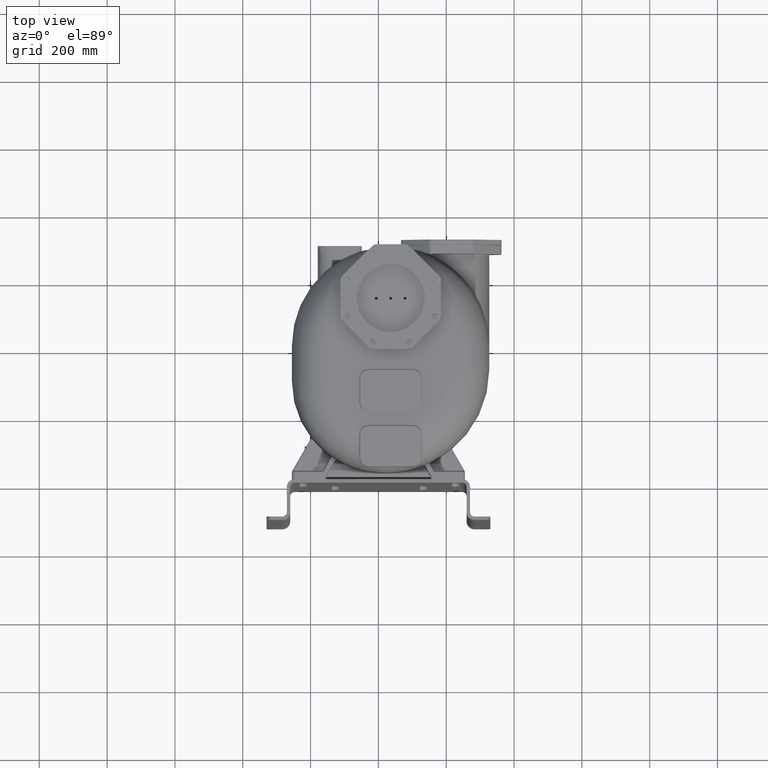
[diagram: clean part render]
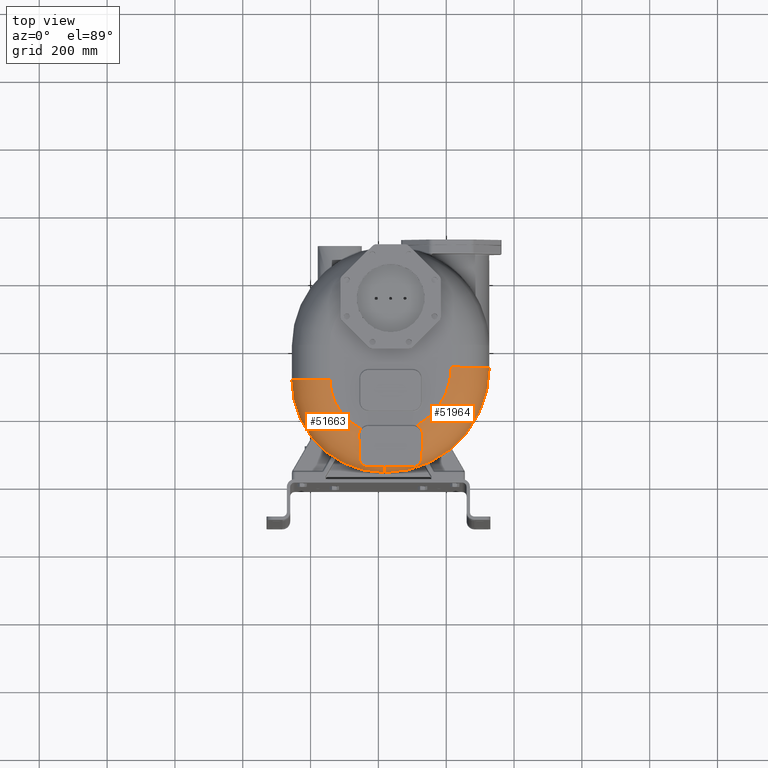
[diagram: same view with one multi-face feature highlighted, each face labeled with its STEP entity id]
A machine part, top view. The highlighted faces form ONE feature: a constant-radius fillet chain: 2 tangent blend faces with common blend radius 112 mm. The faces share edges in the B-rep.
Their STEP definitions:
[1] entity #51964 (Torus):
#4234=CARTESIAN_POINT('',(1.8E1,3.28E2,1.36E2));
#4235=DIRECTION('',(0.E0,0.E0,1.E0));
#4236=DIRECTION('',(0.E0,-1.E0,0.E0));
#4237=AXIS2_PLACEMENT_3D('',#4234,#4235,#4236);
#15557=CARTESIAN_POINT('',(2.15E2,3.28E2,1.36E2));
#15558=DIRECTION('',(0.E0,1.E0,0.E0));
#15559=DIRECTION('',(0.E0,0.E0,1.E0));
#15560=AXIS2_PLACEMENT_3D('',#15557,#15558,#15559);
#15571=CARTESIAN_POINT('',(1.8E1,3.28E2,2.48E2));
#15572=DIRECTION('',(0.E0,0.E0,1.E0));
#15573=DIRECTION('',(4.870655425333E-1,-8.733654202433E-1,0.E0));
#15574=AXIS2_PLACEMENT_3D('',#15571,#15572,#15573);
#16372=CARTESIAN_POINT('',(9.996628627530E1,3.469895152067E1,1.672949240605E2));
#16373=CARTESIAN_POINT('',(1.001373556917E2,3.469992224291E1,1.671399033274E2));
#16374=CARTESIAN_POINT('',(1.004743755294E2,3.470479170282E1,1.668409293172E2));
#16375=CARTESIAN_POINT('',(1.009654113129E2,3.472045772033E1,1.664249908145E2));
#16376=CARTESIAN_POINT('',(1.014386891867E2,3.474349742183E1,1.660431148490E2));
#16377=CARTESIAN_POINT('',(1.018919022476E2,3.477280370240E1,1.656954130136E2));
#16378=CARTESIAN_POINT('',(1.023214130557E2,3.480692693115E1,1.653820718824E2));
#16379=CARTESIAN_POINT('',(1.027275902532E2,3.484498824612E1,1.651011258450E2));
#16380=CARTESIAN_POINT('',(1.031147613705E2,3.488669435597E1,1.648483328228E2));
#16381=CARTESIAN_POINT('',(1.034869988806E2,3.493184193477E1,1.646196812224E2));
#16382=CARTESIAN_POINT('',(1.038467372658E2,3.498019251298E1,1.644124938687E2));
#16383=CARTESIAN_POINT('',(1.041951132892E2,3.503140659501E1,1.642249448213E2));
#16384=CARTESIAN_POINT('',(1.045338436220E2,3.508528923255E1,1.640549891373E2));
#16385=CARTESIAN_POINT('',(1.048643093004E2,3.514168556456E1,1.639009720932E2));
#16386=CARTESIAN_POINT('',(1.051856567752E2,3.520021574577E1,1.637627965646E2));
#16387=CARTESIAN_POINT('',(1.054973666954E2,3.526051767977E1,1.636400418360E2));
#16388=CARTESIAN_POINT('',(1.057987947571E2,3.532218340557E1,1.635322248870E2));
#16389=CARTESIAN_POINT('',(1.060900195894E2,3.538494025003E1,1.634385237303E2));
#16390=CARTESIAN_POINT('',(1.063711088943E2,3.544851836699E1,1.633581005847E2));
#16391=CARTESIAN_POINT('',(1.066444828617E2,3.551321878954E1,1.632895429985E2));
#16392=CARTESIAN_POINT('',(1.069144136390E2,3.557992119187E1,1.632314228550E2));
#16393=CARTESIAN_POINT('',(1.071840511124E2,3.564940529581E1,1.631831449610E2));
#16394=CARTESIAN_POINT('',(1.074550230952E2,3.572200973772E1,1.631441494284E2));
#16395=CARTESIAN_POINT('',(1.077299747648E2,3.579846383242E1,1.631141343026E2));
#16396=CARTESIAN_POINT('',(1.080068610388E2,3.587827121058E1,1.630935830101E2));
#16397=CARTESIAN_POINT('',(1.082816460756E2,3.596026986012E1,1.630828137151E2));
#16398=CARTESIAN_POINT('',(1.085506185530E2,3.604325582249E1,1.630816555643E2));
#16399=CARTESIAN_POINT('',(1.088143486428E2,3.612729134144E1,1.630897306343E2));
#16400=CARTESIAN_POINT('',(1.090736381084E2,3.621257623722E1,1.631068871244E2));
#16401=CARTESIAN_POINT('',(1.093294200189E2,3.629941603154E1,1.631332014991E2));
#16402=CARTESIAN_POINT('',(1.095847444688E2,3.638890322116E1,1.631691911028E2));
#16403=CARTESIAN_POINT('',(1.098426531262E2,3.648209347434E1,1.632151824467E2));
#16404=CARTESIAN_POINT('',(1.101059562243E2,3.658011982237E1,1.632720120570E2));
#16405=CARTESIAN_POINT('',(1.103753421930E2,3.668341765431E1,1.633403566950E2));
#16406=CARTESIAN_POINT('',(1.106516573943E2,3.679252681955E1,1.634210638719E2));
#16407=CARTESIAN_POINT('',(1.109348908140E2,3.690769912545E1,1.635148785612E2));
#16408=CARTESIAN_POINT('',(1.112230031346E2,3.702834682539E1,1.636218015092E2));
#16409=CARTESIAN_POINT('',(1.115139218259E2,3.715378366597E1,1.637415235263E2));
#16410=CARTESIAN_POINT('',(1.118077402991E2,3.728421768281E1,1.638744816166E2));
#16411=CARTESIAN_POINT('',(1.121055780037E2,3.742039481028E1,1.640218355204E2));
#16412=CARTESIAN_POINT('',(1.124083826933E2,3.756306729065E1,1.641848982800E2));
#16413=CARTESIAN_POINT('',(1.127167804482E2,3.771287251190E1,1.643648724364E2));
#16414=CARTESIAN_POINT('',(1.130333459241E2,3.787147368607E1,1.645642795076E2));
#16415=CARTESIAN_POINT('',(1.133606812075E2,3.804070035113E1,1.647860317455E2));
#16416=CARTESIAN_POINT('',(1.137013461801E2,3.822252289442E1,1.650333781823E2));
#16417=CARTESIAN_POINT('',(1.140561817869E2,3.841801888234E1,1.653081808128E2));
#16418=CARTESIAN_POINT('',(1.144244931270E2,3.862753313793E1,1.656113536885E2));
#16419=CARTESIAN_POINT('',(1.148050376351E2,3.885148036291E1,1.659445547389E2));
#16420=CARTESIAN_POINT('',(1.151981421878E2,3.909114167277E1,1.663104243548E2));
#16421=CARTESIAN_POINT('',(1.156053728349E2,3.934867651871E1,1.667128505899E2));
#16422=CARTESIAN_POINT('',(1.160278977214E2,3.962611035168E1,1.671553083135E2));
#16423=CARTESIAN_POINT('',(1.164678825212E2,3.992605141286E1,1.676416344105E2));
#16424=CARTESIAN_POINT('',(1.169266079974E2,4.025149134123E1,1.681772832619E2));
#16425=CARTESIAN_POINT('',(1.174022214611E2,4.060349216586E1,1.687643598784E2));
#16426=CARTESIAN_POINT('',(1.178915408121E2,4.098191403430E1,1.694023428615E2));
#16427=CARTESIAN_POINT('',(1.183950719994E2,4.138893946509E1,1.700935963322E2));
#16428=CARTESIAN_POINT('',(1.189133782701E2,4.182763321543E1,1.708423908824E2));
#16429=CARTESIAN_POINT('',(1.194459965217E2,4.230098400146E1,1.716530183063E2));
#16430=CARTESIAN_POINT('',(1.199924956382E2,4.281210340039E1,1.725291668491E2));
#16431=CARTESIAN_POINT('',(1.205490828533E2,4.336064947871E1,1.734677027624E2));
#16432=CARTESIAN_POINT('',(1.211112867553E2,4.394620512883E1,1.744659570942E2));
#16433=CARTESIAN_POINT('',(1.216751666602E2,4.456849441094E1,1.755210737179E2));
#16434=CARTESIAN_POINT('',(1.222366489186E2,4.522609983550E1,1.766275797987E2));
#16435=CARTESIAN_POINT('',(1.227912156213E2,4.591697757704E1,1.777793516737E2));
#16436=CARTESIAN_POINT('',(1.233344709261E2,4.663897480167E1,1.789704754038E2));
#16437=CARTESIAN_POINT('',(1.238627807621E2,4.738960207249E1,1.801942639346E2));
#16438=CARTESIAN_POINT('',(1.243727527237E2,4.816604815353E1,1.814438833923E2));
#16439=CARTESIAN_POINT('',(1.248608511916E2,4.896503738166E1,1.827124523092E2));
#16440=CARTESIAN_POINT('',(1.253247125887E2,4.978378796158E1,1.839940090330E2));
#16441=CARTESIAN_POINT('',(1.257626420349E2,5.061995520015E1,1.852836204502E2));
#16442=CARTESIAN_POINT('',(1.261726941953E2,5.147063846477E1,1.865760861925E2));
#16443=CARTESIAN_POINT('',(1.265537557442E2,5.233350569085E1,1.878672737335E2));
#16444=CARTESIAN_POINT('',(1.269052106774E2,5.320668900502E1,1.891539795749E2));
#16445=CARTESIAN_POINT('',(1.272262564062E2,5.408793564938E1,1.904328412429E2));
#16446=CARTESIAN_POINT('',(1.275165167057E2,5.497526362413E1,1.917010517275E2));
#16447=CARTESIAN_POINT('',(1.277759349929E2,5.586694079444E1,1.929563000837E2));
#16448=CARTESIAN_POINT('',(1.280043446219E2,5.676093335823E1,1.941961354834E2));
#16449=CARTESIAN_POINT('',(1.282018775350E2,5.765558276922E1,1.954187607512E2));
#16450=CARTESIAN_POINT('',(1.283689749779E2,5.854987061055E1,1.966233017909E2));
#16451=CARTESIAN_POINT('',(1.285059884557E2,5.944262000642E1,1.978087912650E2));
#16452=CARTESIAN_POINT('',(1.286132723223E2,6.033266295219E1,1.989743811224E2));
#16453=CARTESIAN_POINT('',(1.286912888214E2,6.121882157338E1,2.001191941472E2));
#16454=CARTESIAN_POINT('',(1.287406916174E2,6.209998804672E1,2.012425757360E2));
#16455=CARTESIAN_POINT('',(1.287547812500E2,6.268319389477E1,2.019763340590E2));
#16456=CARTESIAN_POINT('',(1.287572800099E2,6.297365139369E1,2.023395633732E2));
#16458=CARTESIAN_POINT('',(1.287572800099E2,6.297365139369E1,2.023395633732E2));
#16459=CARTESIAN_POINT('',(1.287608377425E2,6.338670809961E1,2.028560539846E2));
#16460=CARTESIAN_POINT('',(1.287682330542E2,6.422326556516E1,2.038834268704E2));
#16461=CARTESIAN_POINT('',(1.287794121625E2,6.550996550006E1,2.054066675670E2));
#16462=CARTESIAN_POINT('',(1.287910001793E2,6.682778630957E1,2.069113494365E2));
#16463=CARTESIAN_POINT('',(1.288029029721E2,6.817635637886E1,2.083966301021E2));
#16464=CARTESIAN_POINT('',(1.288151457256E2,6.955515944464E1,2.098617094520E2));
#16465=CARTESIAN_POINT('',(1.288277294497E2,7.096370000208E1,2.113058182797E2));
#16466=CARTESIAN_POINT('',(1.288406686636E2,7.240136155865E1,2.127281290451E2));
#16467=CARTESIAN_POINT('',(1.288539852213E2,7.386798159497E1,2.141282979738E2));
#16468=CARTESIAN_POINT('',(1.288677123493E2,7.536364968027E1,2.155061965501E2));
#16469=CARTESIAN_POINT('',(1.288818793615E2,7.688841615789E1,2.168616275253E2));
#16470=CARTESIAN_POINT('',(1.288964756595E2,7.844245438478E1,2.181944848334E2));
#16471=CARTESIAN_POINT('',(1.289114996515E2,8.002595128443E1,2.195046270914E2));
#16472=CARTESIAN_POINT('',(1.289269531435E2,8.163918792789E1,2.207919443391E2));
#16473=CARTESIAN_POINT('',(1.289428390579E2,8.328210424685E1,2.220560113402E2));
#16474=CARTESIAN_POINT('',(1.289591556585E2,8.495376465335E1,2.232957603930E2));
#16475=CARTESIAN_POINT('',(1.289759054946E2,8.665328473009E1,2.245102483032E2));
#16476=CARTESIAN_POINT('',(1.289930955109E2,8.837983923890E1,2.256986504967E2));
#16477=CARTESIAN_POINT('',(1.290107468220E2,9.013365351477E1,2.268608869568E2));
#16478=CARTESIAN_POINT('',(1.290288844979E2,9.191487079906E1,2.279967738683E2));
#16479=CARTESIAN_POINT('',(1.290475353682E2,9.372367131971E1,2.291061198051E2));
#16480=CARTESIAN_POINT('',(1.290666998325E2,9.556032330347E1,2.301887553051E2));
#16481=CARTESIAN_POINT('',(1.290863836672E2,9.742505945607E1,2.312444500672E2));
#16482=CARTESIAN_POINT('',(1.291065974841E2,9.931826070828E1,2.322730093305E2));
#16483=CARTESIAN_POINT('',(1.291273440803E2,1.012392102710E2,2.332736282491E2));
#16484=CARTESIAN_POINT('',(1.291486266574E2,1.031869203281E2,2.342454235522E2));
#16485=CARTESIAN_POINT('',(1.291704498035E2,1.051602363420E2,2.351875082213E2));
#16486=CARTESIAN_POINT('',(1.291928323361E2,1.071590044043E2,2.360995265122E2));
#16487=CARTESIAN_POINT('',(1.292158042437E2,1.091837470356E2,2.369813978840E2));
#16488=CARTESIAN_POINT('',(1.292393971435E2,1.112348408889E2,2.378329213673E2));
#16489=CARTESIAN_POINT('',(1.292636470521E2,1.133126974602E2,2.386538653375E2));
#16490=CARTESIAN_POINT('',(1.292885578947E2,1.154177065283E2,2.394439508462E2));
#16491=CARTESIAN_POINT('',(1.293141393901E2,1.175503172368E2,2.402028753168E2));
#16492=CARTESIAN_POINT('',(1.293404038638E2,1.197107360111E2,2.409302062486E2));
#16493=CARTESIAN_POINT('',(1.293673580975E2,1.218983911452E2,2.416252435829E2));
#16494=CARTESIAN_POINT('',(1.293950177594E2,1.241127850065E2,2.422873544369E2));
#16495=CARTESIAN_POINT('',(1.294233888232E2,1.263533774580E2,2.429158805603E2));
#16496=CARTESIAN_POINT('',(1.294525297767E2,1.286195603948E2,2.435103174565E2));
#16497=CARTESIAN_POINT('',(1.294723889157E2,1.301471064749E2,2.438832414884E2));
#16498=CARTESIAN_POINT('',(1.294824840369E2,1.309148942948E2,2.440639287063E2));
#16500=CARTESIAN_POINT('',(1.294824840369E2,1.309148942948E2,2.440639287063E2));
#16501=CARTESIAN_POINT('',(1.294856085190E2,1.311563389867E2,2.441207367301E2));
#16502=CARTESIAN_POINT('',(1.294850719431E2,1.316383384252E2,2.442338503577E2));
#16503=CARTESIAN_POINT('',(1.294665695324E2,1.323591474810E2,2.444009789249E2));
#16504=CARTESIAN_POINT('',(1.294293115231E2,1.330767852542E2,2.445657276592E2));
#16505=CARTESIAN_POINT('',(1.293738171054E2,1.337907185954E2,2.447277525538E2));
#16506=CARTESIAN_POINT('',(1.293002023250E2,1.345003099385E2,2.448868628296E2));
#16507=CARTESIAN_POINT('',(1.292087078743E2,1.352049675058E2,2.450428447462E2));
#16508=CARTESIAN_POINT('',(1.290995668787E2,1.359040981307E2,2.451955076072E2));
#16509=CARTESIAN_POINT('',(1.289729007110E2,1.365977639598E2,2.453448099855E2));
#16510=CARTESIAN_POINT('',(1.288288092646E2,1.372860398006E2,2.454907122620E2));
#16511=CARTESIAN_POINT('',(1.286674175973E2,1.379690614172E2,2.456331794040E2));
#16512=CARTESIAN_POINT('',(1.284889193336E2,1.386464495976E2,2.457720750303E2));
#16513=CARTESIAN_POINT('',(1.282935278692E2,1.393177848496E2,2.459072636751E2));
#16514=CARTESIAN_POINT('',(1.280814396680E2,1.399826946111E2,2.460386281185E2));
#16515=CARTESIAN_POINT('',(1.278529911072E2,1.406404183670E2,2.461659855697E2));
#16516=CARTESIAN_POINT('',(1.276085637113E2,1.412901969739E2,2.462891688111E2));
#16517=CARTESIAN_POINT('',(1.273486134481E2,1.419312204444E2,2.464080177456E2));
#16518=CARTESIAN_POINT('',(1.270732851682E2,1.425635019767E2,2.465225369475E2));
#16519=CARTESIAN_POINT('',(1.267826060029E2,1.431872009728E2,2.466327583547E2));
#16520=CARTESIAN_POINT('',(1.264765765826E2,1.438024162006E2,2.467387034937E2));
#16521=CARTESIAN_POINT('',(1.261552286826E2,1.444093279083E2,2.468403977583E2));
#16522=CARTESIAN_POINT('',(1.258185673195E2,1.450080452611E2,2.469378560417E2));
#16523=CARTESIAN_POINT('',(1.254664030615E2,1.455988684964E2,2.470311221186E2));
#16524=CARTESIAN_POINT('',(1.250993789941E2,1.461806516317E2,2.471200177436E2));
#16525=CARTESIAN_POINT('',(1.247185721150E2,1.467517876456E2,2.472043255739E2));
#16526=CARTESIAN_POINT('',(1.243251521952E2,1.473108020618E2,2.472838842060E2));
#16527=CARTESIAN_POINT('',(1.239200498490E2,1.478567754813E2,2.473586423052E2));
#16528=CARTESIAN_POINT('',(1.235040263438E2,1.483891221299E2,2.474286142187E2));
#16529=CARTESIAN_POINT('',(1.230780426464E2,1.489071090206E2,2.474938134199E2));
#16530=CARTESIAN_POINT('',(1.226424387202E2,1.494108013636E2,2.475543693567E2));
#16531=CARTESIAN_POINT('',(1.221971948162E2,1.499007737093E2,2.476104624699E2));
#16532=CARTESIAN_POINT('',(1.217422539964E2,1.503775574342E2,2.476622569911E2));
#16533=CARTESIAN_POINT('',(1.212778606371E2,1.508412591142E2,2.477098664295E2));
#16534=CARTESIAN_POINT('',(1.208045807651E2,1.512916538033E2,2.477533748804E2));
#16535=CARTESIAN_POINT('',(1.203229058599E2,1.517286050820E2,2.477928834042E2));
#16536=CARTESIAN_POINT('',(1.198333251346E2,1.521519853315E2,2.478285001930E2));
#16537=CARTESIAN_POINT('',(1.193362688034E2,1.525617222601E2,2.478603436383E2));
#16538=CARTESIAN_POINT('',(1.188322304881E2,1.529576945417E2,2.478885334348E2));
#16539=CARTESIAN_POINT('',(1.183214157953E2,1.533400135729E2,2.479132101322E2));
#16540=CARTESIAN_POINT('',(1.178032972244E2,1.537092548401E2,2.479345384219E2));
#16541=CARTESIAN_POINT('',(1.172773891287E2,1.540658867630E2,2.479526617025E2));
#16542=CARTESIAN_POINT('',(1.167433088659E2,1.544103095997E2,2.479677062208E2));
#16543=CARTESIAN_POINT('',(1.162011854201E2,1.547425124178E2,2.479797749503E2));
#16544=CARTESIAN_POINT('',(1.156510532479E2,1.550624797988E2,2.479889743207E2));
#16545=CARTESIAN_POINT('',(1.150930036154E2,1.553702744201E2,2.479954075118E2));
#16546=CARTESIAN_POINT('',(1.145268973687E2,1.556655010843E2,2.479991877012E2));
#16547=CARTESIAN_POINT('',(1.141445456270E2,1.558547423964E2,2.479999918413E2));
#16548=CARTESIAN_POINT('',(1.139519175091E2,1.559470193424E2,2.479999929474E2));
#16550=CARTESIAN_POINT('',(1.8E1,1.31E2,1.36E2));
#16551=DIRECTION('',(1.E0,0.E0,0.E0));
#16552=DIRECTION('',(0.E0,-8.620689655172E-1,5.067909812655E-1));
#16553=AXIS2_PLACEMENT_3D('',#16550,#16551,#16552);
#16555=CARTESIAN_POINT('',(1.799999999986E1,3.444827203097E1,1.927605921540E2));
#16556=CARTESIAN_POINT('',(1.885732292922E1,3.444828027144E1,1.927606233562E2));
#16557=CARTESIAN_POINT('',(2.057113288366E1,3.444854237092E1,1.927482635998E2));
#16558=CARTESIAN_POINT('',(2.314154970632E1,3.444939599510E1,1.926922462452E2));
#16559=CARTESIAN_POINT('',(2.570656003189E1,3.445074451928E1,1.925988086210E2));
#16560=CARTESIAN_POINT('',(2.826302633707E1,3.445254032399E1,1.924681059699E2));
#16561=CARTESIAN_POINT('',(3.080730315331E1,3.445478415760E1,1.923004663408E2));
#16562=CARTESIAN_POINT('',(3.333589511355E1,3.445749153471E1,1.920963766874E2));
#16563=CARTESIAN_POINT('',(3.584533502422E1,3.446069523918E1,1.918564723548E2));
#16564=CARTESIAN_POINT('',(3.833204479676E1,3.446446443095E1,1.915816021117E2));
#16565=CARTESIAN_POINT('',(4.079340302532E1,3.446871304970E1,1.912723604993E2));
#16566=CARTESIAN_POINT('',(4.322723045483E1,3.447335046379E1,1.909293481362E2));
#16567=CARTESIAN_POINT('',(4.563128876803E1,3.447832125258E1,1.905533008375E2));
#16568=CARTESIAN_POINT('',(4.800342556868E1,3.448359362591E1,1.901450556426E2));
#16569=CARTESIAN_POINT('',(5.034156839082E1,3.448916337723E1,1.897055594247E2));
#16570=CARTESIAN_POINT('',(5.264370033052E1,3.449504382627E1,1.892358580099E2));
#16571=CARTESIAN_POINT('',(5.490784795488E1,3.450129344576E1,1.887371567984E2));
#16572=CARTESIAN_POINT('',(5.713231225693E1,3.450788441066E1,1.882105249212E2));
#16573=CARTESIAN_POINT('',(5.931544172231E1,3.451470051440E1,1.876569237750E2));
#16574=CARTESIAN_POINT('',(6.145556513954E1,3.452167756647E1,1.870774931043E2));
#16575=CARTESIAN_POINT('',(6.355152362321E1,3.452877269612E1,1.864733469403E2));
#16576=CARTESIAN_POINT('',(6.560276487877E1,3.453597250436E1,1.858455173971E2));
#16577=CARTESIAN_POINT('',(6.760869448867E1,3.454328353814E1,1.851951124827E2));
#16578=CARTESIAN_POINT('',(6.956883842164E1,3.455074361049E1,1.845232954372E2));
#16579=CARTESIAN_POINT('',(7.148260999434E1,3.455837095489E1,1.838312667845E2));
#16580=CARTESIAN_POINT('',(7.334927587825E1,3.456606128156E1,1.831200738871E2));
#16581=CARTESIAN_POINT('',(7.516812346530E1,3.457375502060E1,1.823909024059E2));
#16582=CARTESIAN_POINT('',(7.693902997022E1,3.458141387207E1,1.816447874926E2));
#16583=CARTESIAN_POINT('',(7.866232136126E1,3.458902466968E1,1.808826289249E2));
#16584=CARTESIAN_POINT('',(8.033831281982E1,3.459659523165E1,1.801053684426E2));
#16585=CARTESIAN_POINT('',(8.196741427785E1,3.460414753305E1,1.793139259721E2));
#16586=CARTESIAN_POINT('',(8.354952910918E1,3.461173415884E1,1.785095567151E2));
#16587=CARTESIAN_POINT('',(8.508439993257E1,3.461929306415E1,1.776933808399E2));
#16588=CARTESIAN_POINT('',(8.657167256043E1,3.462674841803E1,1.768665924117E2));
#16589=CARTESIAN_POINT('',(8.801167743017E1,3.463405843091E1,1.760301273404E2));
#16590=CARTESIAN_POINT('',(8.940548714157E1,3.464120242614E1,1.751845078353E2));
#16591=CARTESIAN_POINT('',(9.075406481510E1,3.464817767773E1,1.743303088792E2));
#16592=CARTESIAN_POINT('',(9.205859457874E1,3.465499882969E1,1.734679444745E2));
#16593=CARTESIAN_POINT('',(9.331947559006E1,3.466168975778E1,1.725983378511E2));
#16594=CARTESIAN_POINT('',(9.453684924443E1,3.466828950084E1,1.717226739840E2));
#16595=CARTESIAN_POINT('',(9.571069974803E1,3.467476739932E1,1.708421171938E2));
#16596=CARTESIAN_POINT('',(9.684107484867E1,3.468109434429E1,1.699578535942E2));
#16597=CARTESIAN_POINT('',(9.792812113557E1,3.468724819065E1,1.690710776043E2));
#16598=CARTESIAN_POINT('',(9.897212305606E1,3.469321747753E1,1.681829624705E2));
#16599=CARTESIAN_POINT('',(9.963955915591E1,3.469705995521E1,1.675908480625E2));
#16600=CARTESIAN_POINT('',(9.996628627530E1,3.469895152067E1,1.672949240605E2));
#31649=CARTESIAN_POINT('',(3.27E2,3.280000000001E2,1.36E2));
#31651=VERTEX_POINT('',#31649);
#31694=CARTESIAN_POINT('',(2.15E2,3.28E2,2.48E2));
#31696=VERTEX_POINT('',#31694);
#31700=CARTESIAN_POINT('',(1.8E1,1.9E1,1.36E2));
#31701=VERTEX_POINT('',#31700);
#31943=VERTEX_POINT('',#16372);
#31944=VERTEX_POINT('',#16456);
#31947=VERTEX_POINT('',#16555);
#31978=CARTESIAN_POINT('',(1.139519057066E2,1.559470256208E2,2.48E2));
#31980=VERTEX_POINT('',#31978);
#31986=VERTEX_POINT('',#16500);
#51946=CARTESIAN_POINT('',(1.8E1,3.28E2,1.36E2));
#51947=DIRECTION('',(0.E0,0.E0,-1.E0));
#51948=DIRECTION('',(-6.912008863040E-3,-9.999761117814E-1,0.E0));
#51949=AXIS2_PLACEMENT_3D('',#51946,#51947,#51948);
#51950=TOROIDAL_SURFACE('',#51949,1.97E2,1.12E2);
#51952=ORIENTED_EDGE('',*,*,#51951,.T.);
#51954=ORIENTED_EDGE('',*,*,#51953,.T.);
#51955=ORIENTED_EDGE('',*,*,#51936,.T.);
#51956=ORIENTED_EDGE('',*,*,#51261,.T.);
#51957=ORIENTED_EDGE('',*,*,#51248,.T.);
#51958=ORIENTED_EDGE('',*,*,#39773,.F.);
#51959=ORIENTED_EDGE('',*,*,#51650,.F.);
#51961=ORIENTED_EDGE('',*,*,#51960,.T.);
#51962=EDGE_LOOP('',(#51952,#51954,#51955,#51956,#51957,#51958,#51959,#51961));
#51963=FACE_OUTER_BOUND('',#51962,.F.);
#51964=ADVANCED_FACE('',(#51963),#51950,.T.);
#4238=CIRCLE('',#4237,3.09E2);
#15561=CIRCLE('',#15560,1.12E2);
#15575=CIRCLE('',#15574,1.97E2);
#16457=B_SPLINE_CURVE_WITH_KNOTS('',3,(#16372,#16373,#16374,#16375,#16376,
#16377,#16378,#16379,#16380,#16381,#16382,#16383,#16384,#16385,#16386,#16387,
#16388,#16389,#16390,#16391,#16392,#16393,#16394,#16395,#16396,#16397,#16398,
#16399,#16400,#16401,#16402,#16403,#16404,#16405,#16406,#16407,#16408,#16409,
#16410,#16411,#16412,#16413,#16414,#16415,#16416,#16417,#16418,#16419,#16420,
#16421,#16422,#16423,#16424,#16425,#16426,#16427,#16428,#16429,#16430,#16431,
#16432,#16433,#16434,#16435,#16436,#16437,#16438,#16439,#16440,#16441,#16442,
#16443,#16444,#16445,#16446,#16447,#16448,#16449,#16450,#16451,#16452,#16453,
#16454,#16455,#16456),.UNSPECIFIED.,.F.,.F.,(4,1,1,1,1,1,1,1,1,1,1,1,1,1,1,1,1,
1,1,1,1,1,1,1,1,1,1,1,1,1,1,1,1,1,1,1,1,1,1,1,1,1,1,1,1,1,1,1,1,1,1,1,1,1,1,1,1,
1,1,1,1,1,1,1,1,1,1,1,1,1,1,1,1,1,1,1,1,1,1,1,1,1,4),(0.E0,1.219512195122E-2,
2.439024390244E-2,3.658536585366E-2,4.878048780488E-2,6.097560975610E-2,
7.317073170732E-2,8.536585365854E-2,9.756097560976E-2,1.097560975610E-1,
1.219512195122E-1,1.341463414634E-1,1.463414634146E-1,1.585365853659E-1,
1.707317073171E-1,1.829268292683E-1,1.951219512195E-1,2.073170731707E-1,
2.195121951220E-1,2.317073170732E-1,2.439024390244E-1,2.560975609756E-1,
2.682926829268E-1,2.804878048780E-1,2.926829268293E-1,3.048780487805E-1,
3.170731707317E-1,3.292682926829E-1,3.414634146341E-1,3.536585365854E-1,
3.658536585366E-1,3.780487804878E-1,3.902439024390E-1,4.024390243902E-1,
4.146341463415E-1,4.268292682927E-1,4.390243902439E-1,4.512195121951E-1,
4.634146341463E-1,4.756097560976E-1,4.878048780488E-1,5.E-1,5.121951219512E-1,
5.243902439024E-1,5.365853658537E-1,5.487804878049E-1,5.609756097561E-1,
5.731707317073E-1,5.853658536585E-1,5.975609756098E-1,6.097560975610E-1,
6.219512195122E-1,6.341463414634E-1,6.463414634146E-1,6.585365853659E-1,
6.707317073171E-1,6.829268292683E-1,6.951219512195E-1,7.073170731707E-1,
7.195121951220E-1,7.317073170732E-1,7.439024390244E-1,7.560975609756E-1,
7.682926829268E-1,7.804878048780E-1,7.926829268293E-1,8.048780487805E-1,
8.170731707317E-1,8.292682926829E-1,8.414634146341E-1,8.536585365854E-1,
8.658536585366E-1,8.780487804878E-1,8.902439024390E-1,9.024390243902E-1,
9.146341463415E-1,9.268292682927E-1,9.390243902439E-1,9.512195121951E-1,
9.634146341463E-1,9.756097560976E-1,9.878048780488E-1,1.E0),.UNSPECIFIED.);
#16499=B_SPLINE_CURVE_WITH_KNOTS('',3,(#16458,#16459,#16460,#16461,#16462,
#16463,#16464,#16465,#16466,#16467,#16468,#16469,#16470,#16471,#16472,#16473,
#16474,#16475,#16476,#16477,#16478,#16479,#16480,#16481,#16482,#16483,#16484,
#16485,#16486,#16487,#16488,#16489,#16490,#16491,#16492,#16493,#16494,#16495,
#16496,#16497,#16498),.UNSPECIFIED.,.F.,.F.,(4,1,1,1,1,1,1,1,1,1,1,1,1,1,1,1,1,
1,1,1,1,1,1,1,1,1,1,1,1,1,1,1,1,1,1,1,1,1,4),(0.E0,2.631578947368E-2,
5.263157894737E-2,7.894736842105E-2,1.052631578947E-1,1.315789473684E-1,
1.578947368421E-1,1.842105263158E-1,2.105263157895E-1,2.368421052632E-1,
2.631578947368E-1,2.894736842105E-1,3.157894736842E-1,3.421052631579E-1,
3.684210526316E-1,3.947368421053E-1,4.210526315789E-1,4.473684210526E-1,
4.736842105263E-1,5.E-1,5.263157894737E-1,5.526315789474E-1,5.789473684211E-1,
6.052631578947E-1,6.315789473684E-1,6.578947368421E-1,6.842105263158E-1,
7.105263157895E-1,7.368421052632E-1,7.631578947368E-1,7.894736842105E-1,
8.157894736842E-1,8.421052631579E-1,8.684210526316E-1,8.947368421053E-1,
9.210526315789E-1,9.473684210526E-1,9.736842105263E-1,1.E0),.UNSPECIFIED.);
#16549=B_SPLINE_CURVE_WITH_KNOTS('',3,(#16500,#16501,#16502,#16503,#16504,
#16505,#16506,#16507,#16508,#16509,#16510,#16511,#16512,#16513,#16514,#16515,
#16516,#16517,#16518,#16519,#16520,#16521,#16522,#16523,#16524,#16525,#16526,
#16527,#16528,#16529,#16530,#16531,#16532,#16533,#16534,#16535,#16536,#16537,
#16538,#16539,#16540,#16541,#16542,#16543,#16544,#16545,#16546,#16547,#16548),
.UNSPECIFIED.,.F.,.F.,(4,1,1,1,1,1,1,1,1,1,1,1,1,1,1,1,1,1,1,1,1,1,1,1,1,1,1,1,
1,1,1,1,1,1,1,1,1,1,1,1,1,1,1,1,1,1,4),(0.E0,2.173913043478E-2,
4.347826086957E-2,6.521739130435E-2,8.695652173913E-2,1.086956521739E-1,
1.304347826087E-1,1.521739130435E-1,1.739130434783E-1,1.956521739130E-1,
2.173913043478E-1,2.391304347826E-1,2.608695652174E-1,2.826086956522E-1,
3.043478260870E-1,3.260869565217E-1,3.478260869565E-1,3.695652173913E-1,
3.913043478261E-1,4.130434782609E-1,4.347826086957E-1,4.565217391304E-1,
4.782608695652E-1,5.E-1,5.217391304348E-1,5.434782608696E-1,5.652173913043E-1,
5.869565217391E-1,6.086956521739E-1,6.304347826087E-1,6.521739130435E-1,
6.739130434783E-1,6.956521739130E-1,7.173913043478E-1,7.391304347826E-1,
7.608695652174E-1,7.826086956522E-1,8.043478260870E-1,8.260869565217E-1,
8.478260869565E-1,8.695652173913E-1,8.913043478261E-1,9.130434782609E-1,
9.347826086957E-1,9.565217391304E-1,9.782608695652E-1,1.E0),.UNSPECIFIED.);
#16554=CIRCLE('',#16553,1.12E2);
#16601=B_SPLINE_CURVE_WITH_KNOTS('',3,(#16555,#16556,#16557,#16558,#16559,
#16560,#16561,#16562,#16563,#16564,#16565,#16566,#16567,#16568,#16569,#16570,
#16571,#16572,#16573,#16574,#16575,#16576,#16577,#16578,#16579,#16580,#16581,
#16582,#16583,#16584,#16585,#16586,#16587,#16588,#16589,#16590,#16591,#16592,
#16593,#16594,#16595,#16596,#16597,#16598,#16599,#16600),.UNSPECIFIED.,.F.,.F.,(
4,1,1,1,1,1,1,1,1,1,1,1,1,1,1,1,1,1,1,1,1,1,1,1,1,1,1,1,1,1,1,1,1,1,1,1,1,1,1,1,
1,1,1,4),(0.E0,2.325581395349E-2,4.651162790698E-2,6.976744186047E-2,
9.302325581395E-2,1.162790697674E-1,1.395348837209E-1,1.627906976744E-1,
1.860465116279E-1,2.093023255814E-1,2.325581395349E-1,2.558139534884E-1,
2.790697674419E-1,3.023255813953E-1,3.255813953488E-1,3.488372093023E-1,
3.720930232558E-1,3.953488372093E-1,4.186046511628E-1,4.418604651163E-1,
4.651162790698E-1,4.883720930233E-1,5.116279069767E-1,5.348837209302E-1,
5.581395348837E-1,5.813953488372E-1,6.046511627907E-1,6.279069767442E-1,
6.511627906977E-1,6.744186046512E-1,6.976744186047E-1,7.209302325581E-1,
7.441860465116E-1,7.674418604651E-1,7.906976744186E-1,8.139534883721E-1,
8.372093023256E-1,8.604651162791E-1,8.837209302326E-1,9.069767441860E-1,
9.302325581395E-1,9.534883720930E-1,9.767441860465E-1,1.E0),.UNSPECIFIED.);
#39773=EDGE_CURVE('',#31701,#31651,#4238,.T.);
#51248=EDGE_CURVE('',#31696,#31651,#15561,.T.);
#51261=EDGE_CURVE('',#31980,#31696,#15575,.T.);
#51650=EDGE_CURVE('',#31947,#31701,#16554,.T.);
#51936=EDGE_CURVE('',#31986,#31980,#16549,.T.);
#51951=EDGE_CURVE('',#31943,#31944,#16457,.T.);
#51953=EDGE_CURVE('',#31944,#31986,#16499,.T.);
#51960=EDGE_CURVE('',#31947,#31943,#16601,.T.);
[2] entity #51663 (Torus):
#3769=CARTESIAN_POINT('',(1.8E1,2.92E2,1.36E2));
#3770=DIRECTION('',(0.E0,0.E0,1.E0));
#3771=DIRECTION('',(-1.E0,0.E0,0.E0));
#3772=AXIS2_PLACEMENT_3D('',#3769,#3770,#3771);
#15590=CARTESIAN_POINT('',(1.8E1,2.92E2,2.48E2));
#15591=DIRECTION('',(0.E0,0.E0,1.E0));
#15592=DIRECTION('',(-1.E0,0.E0,0.E0));
#15593=AXIS2_PLACEMENT_3D('',#15590,#15591,#15592);
#16121=CARTESIAN_POINT('',(-2.836321163079E1,3.453620777873E1,
1.852202285174E2));
#16122=CARTESIAN_POINT('',(-2.776878315366E1,3.453400796060E1,
1.854311371049E2));
#16123=CARTESIAN_POINT('',(-2.656760380207E1,3.452958269487E1,
1.858461455721E2));
#16124=CARTESIAN_POINT('',(-2.472801119882E1,3.452315808216E1,
1.864475398257E2));
#16125=CARTESIAN_POINT('',(-2.285198633187E1,3.451682016615E1,
1.870267994693E2));
#16126=CARTESIAN_POINT('',(-2.094036735899E1,3.451064108487E1,
1.875830146206E2));
#16127=CARTESIAN_POINT('',(-1.899423180608E1,3.450466451057E1,
1.881153280081E2));
#16128=CARTESIAN_POINT('',(-1.701447498989E1,3.449888468167E1,
1.886228488086E2));
#16129=CARTESIAN_POINT('',(-1.500198827852E1,3.449329941144E1,
1.891047376606E2));
#16130=CARTESIAN_POINT('',(-1.295772422725E1,3.448792810255E1,
1.895602056248E2));
#16131=CARTESIAN_POINT('',(-1.088312781816E1,3.448280699307E1,
1.899884233790E2));
#16132=CARTESIAN_POINT('',(-8.779620787807E0,3.447799825484E1,
1.903886666521E2));
#16133=CARTESIAN_POINT('',(-6.649107451960E0,3.447349417666E1,
1.907600492779E2));
#16134=CARTESIAN_POINT('',(-4.493806009364E0,3.446929363126E1,
1.911017294079E2));
#16135=CARTESIAN_POINT('',(-2.315435554580E0,3.446541339579E1,
1.914130604666E2));
#16136=CARTESIAN_POINT('',(-1.149929868693E-1,3.446188674446E1,
1.916935631991E2));
#16137=CARTESIAN_POINT('',(2.105740025847E0,3.445876310157E1,1.919426951460E2));
#16138=CARTESIAN_POINT('',(4.342857198973E0,3.445602330619E1,1.921596545684E2));
#16139=CARTESIAN_POINT('',(6.592943311480E0,3.445366691560E1,1.923439057328E2));
#16140=CARTESIAN_POINT('',(8.854972134643E0,3.445170458771E1,1.924952153973E2));
#16141=CARTESIAN_POINT('',(1.112777338754E1,3.445017647577E1,1.926133772933E2));
#16142=CARTESIAN_POINT('',(1.341014376286E1,3.444909369432E1,1.926981445467E2));
#16143=CARTESIAN_POINT('',(1.570105635719E1,3.444844172917E1,1.927492099321E2));
#16144=CARTESIAN_POINT('',(1.723281851806E1,3.444827363159E1,1.927605982126E2));
#16145=CARTESIAN_POINT('',(1.799999999986E1,3.444827203097E1,1.927605921540E2));
#16147=CARTESIAN_POINT('',(-1.43E2,2.92E2,1.36E2));
#16148=DIRECTION('',(0.E0,-1.E0,0.E0));
#16149=DIRECTION('',(0.E0,0.E0,1.E0));
#16150=AXIS2_PLACEMENT_3D('',#16147,#16148,#16149);
#16152=CARTESIAN_POINT('',(-5.235807077116E1,1.471872196233E2,
2.479999899412E2));
#16153=CARTESIAN_POINT('',(-5.248621277393E1,1.470153245492E2,
2.479999873242E2));
#16154=CARTESIAN_POINT('',(-5.273922681555E1,1.466669188014E2,
2.479988179616E2));
#16155=CARTESIAN_POINT('',(-5.310995839567E1,1.461308985398E2,
2.479933225400E2));
#16156=CARTESIAN_POINT('',(-5.347047478563E1,1.455815268830E2,
2.479839984761E2));
#16157=CARTESIAN_POINT('',(-5.382027044996E1,1.450192028874E2,
2.479707147575E2));
#16158=CARTESIAN_POINT('',(-5.415860204246E1,1.444442662800E2,
2.479533687609E2));
#16159=CARTESIAN_POINT('',(-5.448477228236E1,1.438571252145E2,
2.479318693540E2));
#16160=CARTESIAN_POINT('',(-5.479816484949E1,1.432581422283E2,
2.479061377976E2));
#16161=CARTESIAN_POINT('',(-5.509809022084E1,1.426481009787E2,
2.478761265873E2));
#16162=CARTESIAN_POINT('',(-5.538369025491E1,1.420282727700E2,
2.478418396899E2));
#16163=CARTESIAN_POINT('',(-5.565422571626E1,1.413999455493E2,
2.478033153635E2));
#16164=CARTESIAN_POINT('',(-5.590911803956E1,1.407642960332E2,
2.477606174081E2));
#16165=CARTESIAN_POINT('',(-5.614820071793E1,1.401216039052E2,
2.477137695347E2));
#16166=CARTESIAN_POINT('',(-5.637125531444E1,1.394722528790E2,
2.476628096021E2));
#16167=CARTESIAN_POINT('',(-5.657806267778E1,1.388166097451E2,
2.476077846090E2));
#16168=CARTESIAN_POINT('',(-5.676848769869E1,1.381548521785E2,
2.475487316168E2));
#16169=CARTESIAN_POINT('',(-5.694244068619E1,1.374871731546E2,
2.474856906367E2));
#16170=CARTESIAN_POINT('',(-5.709980501475E1,1.368137289949E2,
2.474187026212E2));
#16171=CARTESIAN_POINT('',(-5.724039484222E1,1.361349149195E2,
2.473478376500E2));
#16172=CARTESIAN_POINT('',(-5.736400756196E1,1.354512281676E2,
2.472731861334E2));
#16173=CARTESIAN_POINT('',(-5.747044846930E1,1.347631808481E2,
2.471948506922E2));
#16174=CARTESIAN_POINT('',(-5.755954952931E1,1.340711618333E2,
2.471129297344E2));
#16175=CARTESIAN_POINT('',(-5.763114897855E1,1.333753868606E2,
2.470275076337E2));
#16176=CARTESIAN_POINT('',(-5.768507919345E1,1.326761270757E2,
2.469386810900E2));
#16177=CARTESIAN_POINT('',(-5.772132163831E1,1.319736895130E2,
2.468465416630E2));
#16178=CARTESIAN_POINT('',(-5.773952526531E1,1.312683447330E2,
2.467512214507E2));
#16179=CARTESIAN_POINT('',(-5.774013751694E1,1.307964674705E2,
2.466855639655E2));
#16180=CARTESIAN_POINT('',(-5.773723875111E1,1.305600963479E2,
2.466522562700E2));
#16182=CARTESIAN_POINT('',(-5.773723875111E1,1.305600963479E2,
2.466522562700E2));
#16183=CARTESIAN_POINT('',(-5.772792703554E1,1.298020380880E2,
2.465454307455E2));
#16184=CARTESIAN_POINT('',(-5.770958324079E1,1.282923866191E2,
2.463194984770E2));
#16185=CARTESIAN_POINT('',(-5.768286413114E1,1.260485698967E2,
2.459441736592E2));
#16186=CARTESIAN_POINT('',(-5.765691748440E1,1.238249945868E2,
2.455328516925E2));
#16187=CARTESIAN_POINT('',(-5.763171327010E1,1.216216728704E2,
2.450859047189E2));
#16188=CARTESIAN_POINT('',(-5.760722794077E1,1.194384990423E2,
2.446036936153E2));
#16189=CARTESIAN_POINT('',(-5.758343883668E1,1.172753247513E2,
2.440865348862E2));
#16190=CARTESIAN_POINT('',(-5.756031854782E1,1.151322998883E2,
2.435347987133E2));
#16191=CARTESIAN_POINT('',(-5.753784548020E1,1.130097832508E2,
2.429489089397E2));
#16192=CARTESIAN_POINT('',(-5.751599953556E1,1.109081010174E2,
2.423292895439E2));
#16193=CARTESIAN_POINT('',(-5.749476178257E1,1.088274081502E2,
2.416763157299E2));
#16194=CARTESIAN_POINT('',(-5.747411382342E1,1.067676806014E2,
2.409902935233E2));
#16195=CARTESIAN_POINT('',(-5.745404284107E1,1.047288988422E2,
2.402715075875E2));
#16196=CARTESIAN_POINT('',(-5.743452846084E1,1.027111364760E2,
2.395202569280E2));
#16197=CARTESIAN_POINT('',(-5.741554685044E1,1.007146343201E2,
2.387368941988E2));
#16198=CARTESIAN_POINT('',(-5.739707828175E1,9.873959800082E1,
2.379217558602E2));
#16199=CARTESIAN_POINT('',(-5.737910528375E1,9.678621154278E1,
2.370751619669E2));
#16200=CARTESIAN_POINT('',(-5.736161539747E1,9.485485269997E1,
2.361975148684E2));
#16201=CARTESIAN_POINT('',(-5.734459952455E1,9.294591549269E1,
2.352892343294E2));
#16202=CARTESIAN_POINT('',(-5.732805174896E1,9.105980464113E1,
2.343507559524E2));
#16203=CARTESIAN_POINT('',(-5.731196899639E1,8.919677456380E1,
2.333824494650E2));
#16204=CARTESIAN_POINT('',(-5.729632812935E1,8.735663520353E1,
2.323844415302E2));
#16205=CARTESIAN_POINT('',(-5.728110760829E1,8.553912194987E1,
2.313567679339E2));
#16206=CARTESIAN_POINT('',(-5.726629474150E1,8.374466890644E1,
2.302998283757E2));
#16207=CARTESIAN_POINT('',(-5.725188491968E1,8.197437953383E1,
2.292144571680E2));
#16208=CARTESIAN_POINT('',(-5.723787551895E1,8.022929416257E1,
2.281015367056E2));
#16209=CARTESIAN_POINT('',(-5.722425943950E1,7.850954206180E1,
2.269614139576E2));
#16210=CARTESIAN_POINT('',(-5.721103004614E1,7.681495122169E1,
2.257942071039E2));
#16211=CARTESIAN_POINT('',(-5.719818542524E1,7.514543325586E1,
2.246000494481E2));
#16212=CARTESIAN_POINT('',(-5.718572403444E1,7.350101749791E1,
2.233791258702E2));
#16213=CARTESIAN_POINT('',(-5.717361685494E1,7.188181821785E1,
2.221316703908E2));
#16214=CARTESIAN_POINT('',(-5.716184224564E1,7.028795022050E1,
2.208578952031E2));
#16215=CARTESIAN_POINT('',(-5.715038432696E1,6.872003166060E1,
2.195584140098E2));
#16216=CARTESIAN_POINT('',(-5.713923795642E1,6.717865129654E1,
2.182338692338E2));
#16217=CARTESIAN_POINT('',(-5.712837955296E1,6.566440141822E1,
2.168849058230E2));
#16218=CARTESIAN_POINT('',(-5.711787607644E1,6.417775177620E1,
2.155122463816E2));
#16219=CARTESIAN_POINT('',(-5.711094479896E1,6.320559463489E1,
2.145816880093E2));
#16220=CARTESIAN_POINT('',(-5.710759064435E1,6.272419697245E1,
2.141127286875E2));
#16222=CARTESIAN_POINT('',(-5.710759064435E1,6.272419697245E1,
2.141127286875E2));
#16223=CARTESIAN_POINT('',(-5.710569600988E1,6.245183271193E1,
2.138473757910E2));
#16224=CARTESIAN_POINT('',(-5.709385755764E1,6.190572892699E1,
2.133126941935E2));
#16225=CARTESIAN_POINT('',(-5.705147435537E1,6.108268051420E1,
2.124980084515E2));
#16226=CARTESIAN_POINT('',(-5.698415265564E1,6.025674988806E1,
2.116718002382E2));
#16227=CARTESIAN_POINT('',(-5.689157508404E1,5.942881279959E1,
2.108346599622E2));
#16228=CARTESIAN_POINT('',(-5.677353129312E1,5.859979041400E1,
2.099873675390E2));
#16229=CARTESIAN_POINT('',(-5.662982098263E1,5.777056931388E1,
2.091306840525E2));
#16230=CARTESIAN_POINT('',(-5.646019592971E1,5.694205046178E1,
2.082654716928E2));
#16231=CARTESIAN_POINT('',(-5.626445655327E1,5.611497846028E1,
2.073924520315E2));
#16232=CARTESIAN_POINT('',(-5.604268178523E1,5.529089443475E1,
2.065132266011E2));
#16233=CARTESIAN_POINT('',(-5.579532138243E1,5.447202468465E1,
2.056302177130E2));
#16234=CARTESIAN_POINT('',(-5.552266083319E1,5.365997772615E1,
2.047453573774E2));
#16235=CARTESIAN_POINT('',(-5.522494670004E1,5.285572195368E1,
2.038599322817E2));
#16236=CARTESIAN_POINT('',(-5.490269214763E1,5.206064806197E1,
2.029757473311E2));
#16237=CARTESIAN_POINT('',(-5.455701371653E1,5.127693325422E1,
2.020955377418E2));
#16238=CARTESIAN_POINT('',(-5.418891646478E1,5.050643960879E1,
2.012218873821E2));
#16239=CARTESIAN_POINT('',(-5.379911769576E1,4.975019723419E1,
2.003565540365E2));
#16240=CARTESIAN_POINT('',(-5.338846327298E1,4.900910237607E1,
1.995011558570E2));
#16241=CARTESIAN_POINT('',(-5.295873059351E1,4.828530901948E1,
1.986588083175E2));
#16242=CARTESIAN_POINT('',(-5.251236402997E1,4.758131598903E1,
1.978330922933E2));
#16243=CARTESIAN_POINT('',(-5.205078211802E1,4.689821344184E1,
1.970262085902E2));
#16244=CARTESIAN_POINT('',(-5.157472924671E1,4.623580906334E1,
1.962388226614E2));
#16245=CARTESIAN_POINT('',(-5.108541595511E1,4.559440894152E1,
1.954721299380E2));
#16246=CARTESIAN_POINT('',(-5.058594834845E1,4.497639625374E1,
1.947297856932E2));
#16247=CARTESIAN_POINT('',(-5.008024378657E1,4.438430634718E1,
1.940155961034E2));
#16248=CARTESIAN_POINT('',(-4.956964381872E1,4.381802853397E1,
1.933304605697E2));
#16249=CARTESIAN_POINT('',(-4.905402419447E1,4.327579152172E1,
1.926731545734E2));
#16250=CARTESIAN_POINT('',(-4.853339798687E1,4.275607719189E1,
1.920426054091E2));
#16251=CARTESIAN_POINT('',(-4.801045993867E1,4.225994756210E1,
1.914407585804E2));
#16252=CARTESIAN_POINT('',(-4.748868835076E1,4.178868544797E1,
1.908696756717E2));
#16253=CARTESIAN_POINT('',(-4.697117655404E1,4.134301827509E1,
1.903307163247E2));
#16254=CARTESIAN_POINT('',(-4.645722538697E1,4.092097369617E1,
1.898222049511E2));
#16255=CARTESIAN_POINT('',(-4.594643099503E1,4.052080452360E1,
1.893425189539E2));
#16256=CARTESIAN_POINT('',(-4.543827830254E1,4.014079504120E1,
1.888899641967E2));
#16257=CARTESIAN_POINT('',(-4.493412396915E1,3.978063569211E1,
1.884643983804E2));
#16258=CARTESIAN_POINT('',(-4.443529921641E1,3.943989512116E1,
1.880654177176E2));
#16259=CARTESIAN_POINT('',(-4.394328663108E1,3.911810772931E1,
1.876924194896E2));
#16260=CARTESIAN_POINT('',(-4.345835353595E1,3.881448706158E1,
1.873446876624E2));
#16261=CARTESIAN_POINT('',(-4.298057522705E1,3.852820480794E1,
1.870214279591E2));
#16262=CARTESIAN_POINT('',(-4.251016286334E1,3.825845038305E1,
1.867217343882E2));
#16263=CARTESIAN_POINT('',(-4.204685758372E1,3.800415078484E1,
1.864443323593E2));
#16264=CARTESIAN_POINT('',(-4.158924262463E1,3.776369120053E1,
1.861873291299E2));
#16265=CARTESIAN_POINT('',(-4.113598073196E1,3.753565587932E1,
1.859490694839E2));
#16266=CARTESIAN_POINT('',(-4.068501029140E1,3.731843146692E1,
1.857277373992E2));
#16267=CARTESIAN_POINT('',(-4.023693929629E1,3.711184855329E1,
1.855230583227E2));
#16268=CARTESIAN_POINT('',(-3.979417041121E1,3.691657641806E1,
1.853356041933E2));
#16269=CARTESIAN_POINT('',(-3.935744901114E1,3.673242800908E1,
1.851650051989E2));
#16270=CARTESIAN_POINT('',(-3.892703776351E1,3.655901954263E1,
1.850106877592E2));
#16271=CARTESIAN_POINT('',(-3.850283859836E1,3.639584140671E1,
1.848719561217E2));
#16272=CARTESIAN_POINT('',(-3.808427540160E1,3.624225314540E1,
1.847480260076E2));
#16273=CARTESIAN_POINT('',(-3.767087107377E1,3.609770863980E1,
1.846382228888E2));
#16274=CARTESIAN_POINT('',(-3.726035811816E1,3.596112433175E1,
1.845415322121E2));
#16275=CARTESIAN_POINT('',(-3.685006916204E1,3.583149566124E1,
1.844572148343E2));
#16276=CARTESIAN_POINT('',(-3.643753858394E1,3.570788650820E1,
1.843845238132E2));
#16277=CARTESIAN_POINT('',(-3.602299251710E1,3.559024867546E1,
1.843233163581E2));
#16278=CARTESIAN_POINT('',(-3.560652365847E1,3.547854322966E1,
1.842735206703E2));
#16279=CARTESIAN_POINT('',(-3.518842144254E1,3.537283164849E1,
1.842351745737E2));
#16280=CARTESIAN_POINT('',(-3.477151461261E1,3.527378824886E1,
1.842084968750E2));
#16281=CARTESIAN_POINT('',(-3.435890093416E1,3.518200706909E1,
1.841934609726E2));
#16282=CARTESIAN_POINT('',(-3.395217230759E1,3.509761928440E1,
1.841897505378E2));
#16283=CARTESIAN_POINT('',(-3.354767824175E1,3.501972978888E1,
1.841971089262E2));
#16284=CARTESIAN_POINT('',(-3.314236498698E1,3.494784654407E1,
1.842158005882E2));
#16285=CARTESIAN_POINT('',(-3.273324410670E1,3.488140089181E1,
1.842458555877E2));
#16286=CARTESIAN_POINT('',(-3.231830057534E1,3.482012004533E1,
1.842874707189E2));
#16287=CARTESIAN_POINT('',(-3.189488302108E1,3.476380925492E1,
1.843412171518E2));
#16288=CARTESIAN_POINT('',(-3.146279590831E1,3.471274398299E1,
1.844076068748E2));
#16289=CARTESIAN_POINT('',(-3.102505866239E1,3.466754370829E1,
1.844865858823E2));
#16290=CARTESIAN_POINT('',(-3.058437611283E1,3.462864522395E1,
1.845778826937E2));
#16291=CARTESIAN_POINT('',(-3.014217389745E1,3.459628669377E1,
1.846813346523E2));
#16292=CARTESIAN_POINT('',(-2.969858979169E1,3.457057849524E1,
1.847970238697E2));
#16293=CARTESIAN_POINT('',(-2.925415619387E1,3.455179529390E1,
1.849251665454E2));
#16294=CARTESIAN_POINT('',(-2.880881863859E1,3.453962502850E1,
1.850651527031E2));
#16295=CARTESIAN_POINT('',(-2.851190519538E1,3.453674968644E1,
1.851674585676E2));
#16296=CARTESIAN_POINT('',(-2.836321163079E1,3.453620777873E1,
1.852202285174E2));
#16550=CARTESIAN_POINT('',(1.8E1,1.31E2,1.36E2));
#16551=DIRECTION('',(1.E0,0.E0,0.E0));
#16552=DIRECTION('',(0.E0,-8.620689655172E-1,5.067909812655E-1));
#16553=AXIS2_PLACEMENT_3D('',#16550,#16551,#16552);
#16555=CARTESIAN_POINT('',(1.799999999986E1,3.444827203097E1,1.927605921540E2));
#31691=CARTESIAN_POINT('',(-2.55E2,2.920000000005E2,1.36E2));
#31693=VERTEX_POINT('',#31691);
#31700=CARTESIAN_POINT('',(1.8E1,1.9E1,1.36E2));
#31701=VERTEX_POINT('',#31700);
#31703=CARTESIAN_POINT('',(-1.43E2,2.92E2,2.48E2));
#31705=VERTEX_POINT('',#31703);
#31947=VERTEX_POINT('',#16555);
#31949=VERTEX_POINT('',#16121);
#31951=VERTEX_POINT('',#16222);
#31953=CARTESIAN_POINT('',(-5.235807014087E1,1.471872175322E2,2.48E2));
#31954=VERTEX_POINT('',#31953);
#31988=VERTEX_POINT('',#16182);
#51643=CARTESIAN_POINT('',(1.8E1,2.92E2,1.36E2));
#51644=DIRECTION('',(0.E0,0.E0,-1.E0));
#51645=DIRECTION('',(-9.999693962290E-1,7.823465046060E-3,0.E0));
#51646=AXIS2_PLACEMENT_3D('',#51643,#51644,#51645);
#51647=TOROIDAL_SURFACE('',#51646,1.61E2,1.12E2);
#51649=ORIENTED_EDGE('',*,*,#51648,.T.);
#51651=ORIENTED_EDGE('',*,*,#51650,.T.);
#51652=ORIENTED_EDGE('',*,*,#39716,.F.);
#51653=ORIENTED_EDGE('',*,*,#51635,.F.);
#51654=ORIENTED_EDGE('',*,*,#51269,.T.);
#51656=ORIENTED_EDGE('',*,*,#51655,.T.);
#51658=ORIENTED_EDGE('',*,*,#51657,.T.);
#51660=ORIENTED_EDGE('',*,*,#51659,.T.);
#51661=EDGE_LOOP('',(#51649,#51651,#51652,#51653,#51654,#51656,#51658,#51660));
#51662=FACE_OUTER_BOUND('',#51661,.F.);
#51663=ADVANCED_FACE('',(#51662),#51647,.T.);
#3773=CIRCLE('',#3772,2.73E2);
#15594=CIRCLE('',#15593,1.61E2);
#16146=B_SPLINE_CURVE_WITH_KNOTS('',3,(#16121,#16122,#16123,#16124,#16125,
#16126,#16127,#16128,#16129,#16130,#16131,#16132,#16133,#16134,#16135,#16136,
#16137,#16138,#16139,#16140,#16141,#16142,#16143,#16144,#16145),.UNSPECIFIED.,
.F.,.F.,(4,1,1,1,1,1,1,1,1,1,1,1,1,1,1,1,1,1,1,1,1,1,4),(0.E0,4.545454545455E-2,
9.090909090909E-2,1.363636363636E-1,1.818181818182E-1,2.272727272727E-1,
2.727272727273E-1,3.181818181818E-1,3.636363636364E-1,4.090909090909E-1,
4.545454545455E-1,5.E-1,5.454545454545E-1,5.909090909091E-1,6.363636363636E-1,
6.818181818182E-1,7.272727272727E-1,7.727272727273E-1,8.181818181818E-1,
8.636363636364E-1,9.090909090909E-1,9.545454545455E-1,1.E0),.UNSPECIFIED.);
#16151=CIRCLE('',#16150,1.12E2);
#16181=B_SPLINE_CURVE_WITH_KNOTS('',3,(#16152,#16153,#16154,#16155,#16156,
#16157,#16158,#16159,#16160,#16161,#16162,#16163,#16164,#16165,#16166,#16167,
#16168,#16169,#16170,#16171,#16172,#16173,#16174,#16175,#16176,#16177,#16178,
#16179,#16180),.UNSPECIFIED.,.F.,.F.,(4,1,1,1,1,1,1,1,1,1,1,1,1,1,1,1,1,1,1,1,1,
1,1,1,1,1,4),(0.E0,3.846153846154E-2,7.692307692308E-2,1.153846153846E-1,
1.538461538462E-1,1.923076923077E-1,2.307692307692E-1,2.692307692308E-1,
3.076923076923E-1,3.461538461538E-1,3.846153846154E-1,4.230769230769E-1,
4.615384615385E-1,5.E-1,5.384615384615E-1,5.769230769231E-1,6.153846153846E-1,
6.538461538462E-1,6.923076923077E-1,7.307692307692E-1,7.692307692308E-1,
8.076923076923E-1,8.461538461538E-1,8.846153846154E-1,9.230769230769E-1,
9.615384615385E-1,1.E0),.UNSPECIFIED.);
#16221=B_SPLINE_CURVE_WITH_KNOTS('',3,(#16182,#16183,#16184,#16185,#16186,
#16187,#16188,#16189,#16190,#16191,#16192,#16193,#16194,#16195,#16196,#16197,
#16198,#16199,#16200,#16201,#16202,#16203,#16204,#16205,#16206,#16207,#16208,
#16209,#16210,#16211,#16212,#16213,#16214,#16215,#16216,#16217,#16218,#16219,
#16220),.UNSPECIFIED.,.F.,.F.,(4,1,1,1,1,1,1,1,1,1,1,1,1,1,1,1,1,1,1,1,1,1,1,1,
1,1,1,1,1,1,1,1,1,1,1,1,4),(0.E0,2.777777777778E-2,5.555555555556E-2,
8.333333333333E-2,1.111111111111E-1,1.388888888889E-1,1.666666666667E-1,
1.944444444444E-1,2.222222222222E-1,2.5E-1,2.777777777778E-1,3.055555555556E-1,
3.333333333333E-1,3.611111111111E-1,3.888888888889E-1,4.166666666667E-1,
4.444444444444E-1,4.722222222222E-1,5.E-1,5.277777777778E-1,5.555555555556E-1,
5.833333333333E-1,6.111111111111E-1,6.388888888889E-1,6.666666666667E-1,
6.944444444444E-1,7.222222222222E-1,7.5E-1,7.777777777778E-1,8.055555555556E-1,
8.333333333333E-1,8.611111111111E-1,8.888888888889E-1,9.166666666667E-1,
9.444444444444E-1,9.722222222222E-1,1.E0),.UNSPECIFIED.);
#16297=B_SPLINE_CURVE_WITH_KNOTS('',3,(#16222,#16223,#16224,#16225,#16226,
#16227,#16228,#16229,#16230,#16231,#16232,#16233,#16234,#16235,#16236,#16237,
#16238,#16239,#16240,#16241,#16242,#16243,#16244,#16245,#16246,#16247,#16248,
#16249,#16250,#16251,#16252,#16253,#16254,#16255,#16256,#16257,#16258,#16259,
#16260,#16261,#16262,#16263,#16264,#16265,#16266,#16267,#16268,#16269,#16270,
#16271,#16272,#16273,#16274,#16275,#16276,#16277,#16278,#16279,#16280,#16281,
#16282,#16283,#16284,#16285,#16286,#16287,#16288,#16289,#16290,#16291,#16292,
#16293,#16294,#16295,#16296),.UNSPECIFIED.,.F.,.F.,(4,1,1,1,1,1,1,1,1,1,1,1,1,1,
1,1,1,1,1,1,1,1,1,1,1,1,1,1,1,1,1,1,1,1,1,1,1,1,1,1,1,1,1,1,1,1,1,1,1,1,1,1,1,1,
1,1,1,1,1,1,1,1,1,1,1,1,1,1,1,1,1,1,4),(0.E0,1.388888888889E-2,
2.777777777778E-2,4.166666666667E-2,5.555555555556E-2,6.944444444444E-2,
8.333333333333E-2,9.722222222222E-2,1.111111111111E-1,1.25E-1,1.388888888889E-1,
1.527777777778E-1,1.666666666667E-1,1.805555555556E-1,1.944444444444E-1,
2.083333333333E-1,2.222222222222E-1,2.361111111111E-1,2.5E-1,2.638888888889E-1,
2.777777777778E-1,2.916666666667E-1,3.055555555556E-1,3.194444444444E-1,
3.333333333333E-1,3.472222222222E-1,3.611111111111E-1,3.75E-1,3.888888888889E-1,
4.027777777778E-1,4.166666666667E-1,4.305555555556E-1,4.444444444444E-1,
4.583333333333E-1,4.722222222222E-1,4.861111111111E-1,5.E-1,5.138888888889E-1,
5.277777777778E-1,5.416666666667E-1,5.555555555556E-1,5.694444444444E-1,
5.833333333333E-1,5.972222222222E-1,6.111111111111E-1,6.25E-1,6.388888888889E-1,
6.527777777778E-1,6.666666666667E-1,6.805555555556E-1,6.944444444444E-1,
7.083333333333E-1,7.222222222222E-1,7.361111111111E-1,7.5E-1,7.638888888889E-1,
7.777777777778E-1,7.916666666667E-1,8.055555555556E-1,8.194444444444E-1,
8.333333333333E-1,8.472222222222E-1,8.611111111111E-1,8.75E-1,8.888888888889E-1,
9.027777777778E-1,9.166666666667E-1,9.305555555556E-1,9.444444444444E-1,
9.583333333333E-1,9.722222222222E-1,9.861111111111E-1,1.E0),.UNSPECIFIED.);
#16554=CIRCLE('',#16553,1.12E2);
#39716=EDGE_CURVE('',#31693,#31701,#3773,.T.);
#51269=EDGE_CURVE('',#31705,#31954,#15594,.T.);
#51635=EDGE_CURVE('',#31705,#31693,#16151,.T.);
#51648=EDGE_CURVE('',#31949,#31947,#16146,.T.);
#51650=EDGE_CURVE('',#31947,#31701,#16554,.T.);
#51655=EDGE_CURVE('',#31954,#31988,#16181,.T.);
#51657=EDGE_CURVE('',#31988,#31951,#16221,.T.);
#51659=EDGE_CURVE('',#31951,#31949,#16297,.T.);